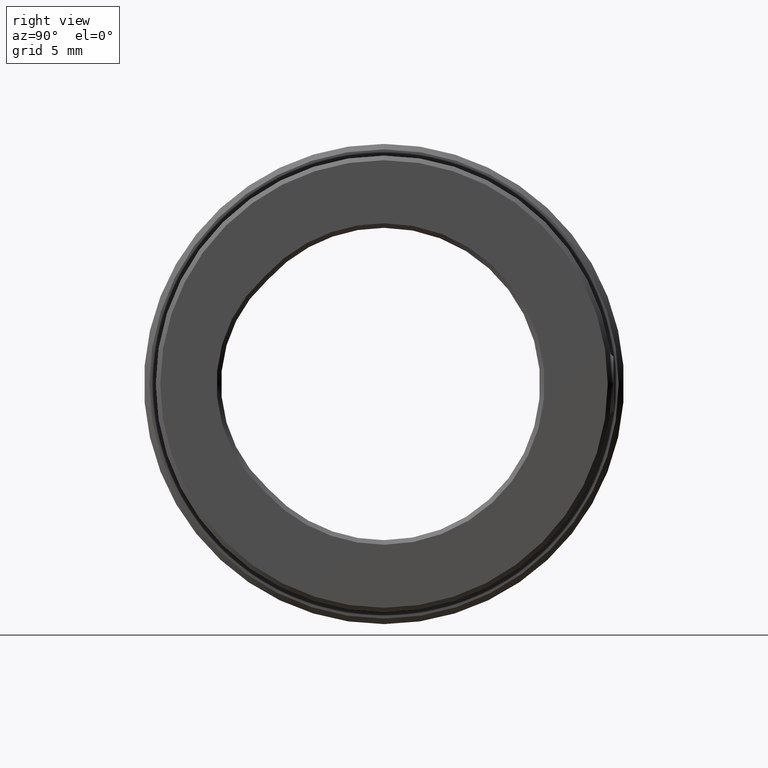
[diagram: clean part render]
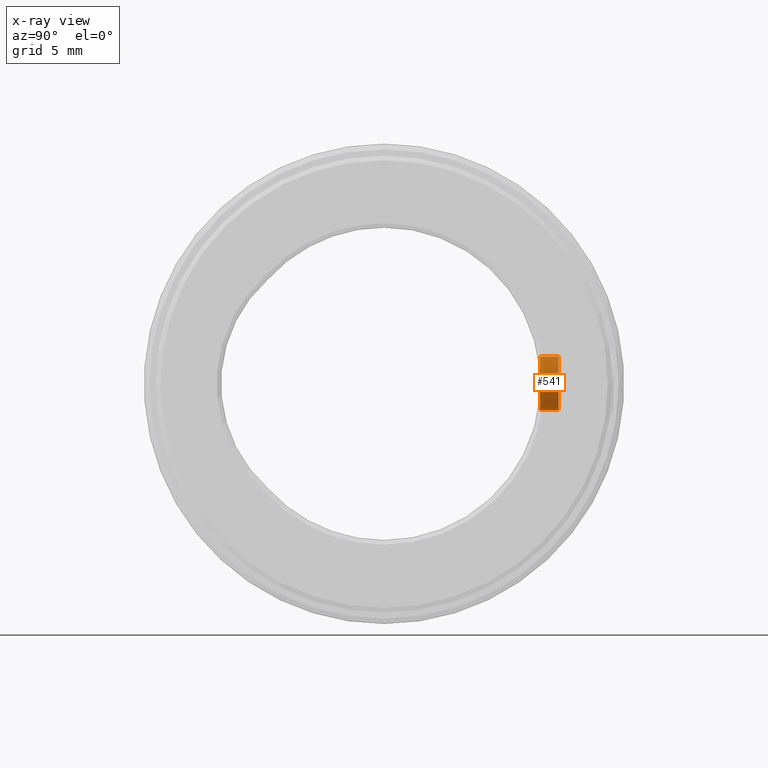
[diagram: x-ray — body ghosted, one internal face saturated and labeled with its STEP entity id]
A machine part, right view, then the same camera in x-ray: the body is ghosted and one INTERNAL B-rep face — a face not visible from any outside direction — is saturated and labeled: STEP entity #541.
In plain terms, the highlighted cylindrical surface (edge-blend (fillet) strip) has radius 1.5 mm, axis along (0, 1, -0).
Its self-contained STEP definition (entity closure, byte-faithful):
#160 = ORIENTED_EDGE ( 'NONE', *, *, #269, .F. ) ;
#220 = VERTEX_POINT ( 'NONE', #411 ) ;
#237 = VECTOR ( 'NONE', #1797, 1000.000000000000000 ) ;
#269 = EDGE_CURVE ( 'NONE', #4243, #220, #2232, .T. ) ;
#287 = DIRECTION ( 'NONE',  ( -0.000000000000000000, 1.000000000000000000, -0.000000000000000000 ) ) ;
#411 = CARTESIAN_POINT ( 'NONE',  ( 0.000000000000000000, -1.000000000000000000, 1.500000000000000222 ) ) ;
#541 = ADVANCED_FACE ( 'NONE', ( #3594 ), #1891, .T. ) ;
#630 = CIRCLE ( 'NONE', #1668, 1.499999999999997780 ) ;
#672 = AXIS2_PLACEMENT_3D ( 'NONE', #2204, #4012, #1516 ) ;
#814 = DIRECTION ( 'NONE',  ( 0.000000000000000000, 0.000000000000000000, 1.000000000000000000 ) ) ;
#861 = DIRECTION ( 'NONE',  ( -0.000000000000000000, -1.000000000000000000, -0.000000000000000000 ) ) ;
#1023 = ORIENTED_EDGE ( 'NONE', *, *, #3684, .F. ) ;
#1026 = CARTESIAN_POINT ( 'NONE',  ( 2.143131898507866818E-16, 0.000000000000000000, -1.499999999999997780 ) ) ;
#1053 = DIRECTION ( 'NONE',  ( 0.000000000000000000, 0.000000000000000000, -1.000000000000000000 ) ) ;
#1200 = CARTESIAN_POINT ( 'NONE',  ( 0.000000000000000000, 0.000000000000000000, 0.000000000000000000 ) ) ;
#1516 = DIRECTION ( 'NONE',  ( 0.000000000000000000, 0.000000000000000000, 1.000000000000000000 ) ) ;
#1668 = AXIS2_PLACEMENT_3D ( 'NONE', #1200, #861, #814 ) ;
#1792 = EDGE_CURVE ( 'NONE', #4243, #4041, #2884, .T. ) ;
#1797 = DIRECTION ( 'NONE',  ( -0.000000000000000000, 1.000000000000000000, -0.000000000000000000 ) ) ;
#1799 = CARTESIAN_POINT ( 'NONE',  ( 0.000000000000000000, -1.000000000000000000, 0.000000000000000000 ) ) ;
#1891 = CYLINDRICAL_SURFACE ( 'NONE', #672, 1.500000000000000222 ) ;
#2021 = ORIENTED_EDGE ( 'NONE', *, *, #4234, .T. ) ;
#2045 = LINE ( 'NONE', #3462, #3092 ) ;
#2204 = CARTESIAN_POINT ( 'NONE',  ( 0.000000000000000000, -1.000000000000000000, 0.000000000000000000 ) ) ;
#2232 = CIRCLE ( 'NONE', #2834, 1.500000000000000222 ) ;
#2834 = AXIS2_PLACEMENT_3D ( 'NONE', #1799, #3169, #1053 ) ;
#2884 = LINE ( 'NONE', #3851, #237 ) ;
#3092 = VECTOR ( 'NONE', #287, 1000.000000000000000 ) ;
#3169 = DIRECTION ( 'NONE',  ( 0.000000000000000000, -1.000000000000000000, 0.000000000000000000 ) ) ;
#3407 = EDGE_LOOP ( 'NONE', ( #160, #4034, #2021, #1023 ) ) ;
#3462 = CARTESIAN_POINT ( 'NONE',  ( 0.000000000000000000, -1.000000000000000000, 1.500000000000000222 ) ) ;
#3594 = FACE_OUTER_BOUND ( 'NONE', #3407, .T. ) ;
#3638 = CARTESIAN_POINT ( 'NONE',  ( 1.836970198721030181E-16, -1.000000000000000000, -1.500000000000000222 ) ) ;
#3684 = EDGE_CURVE ( 'NONE', #220, #4597, #2045, .T. ) ;
#3851 = CARTESIAN_POINT ( 'NONE',  ( 1.836970198721030181E-16, -1.000000000000000000, -1.500000000000000222 ) ) ;
#4012 = DIRECTION ( 'NONE',  ( -0.000000000000000000, 1.000000000000000000, -0.000000000000000000 ) ) ;
#4034 = ORIENTED_EDGE ( 'NONE', *, *, #1792, .T. ) ;
#4041 = VERTEX_POINT ( 'NONE', #1026 ) ;
#4234 = EDGE_CURVE ( 'NONE', #4041, #4597, #630, .T. ) ;
#4243 = VERTEX_POINT ( 'NONE', #3638 ) ;
#4581 = CARTESIAN_POINT ( 'NONE',  ( 0.000000000000000000, 0.000000000000000000, 1.499999999999997780 ) ) ;
#4597 = VERTEX_POINT ( 'NONE', #4581 ) ;